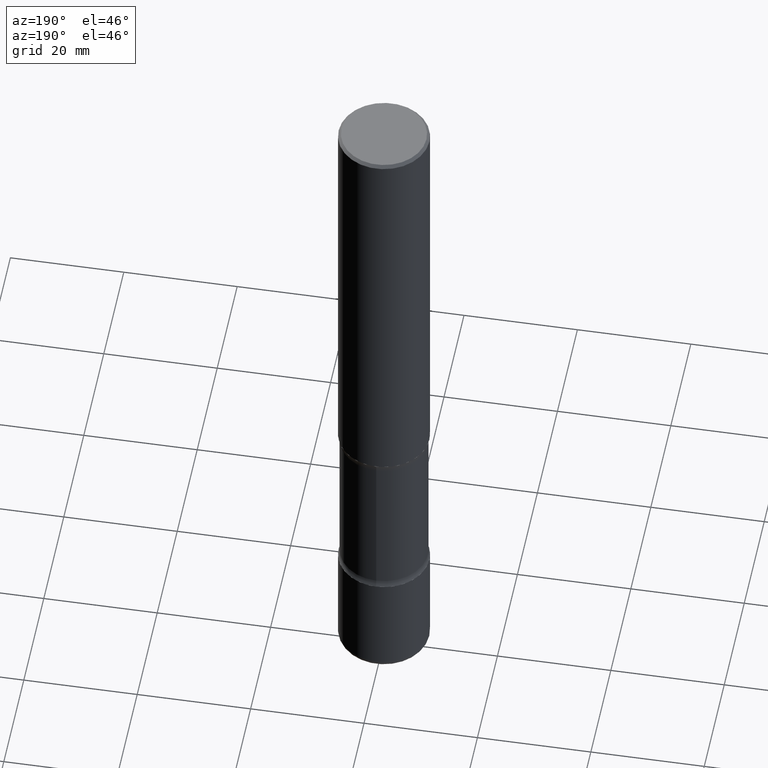
[diagram: clean part render]
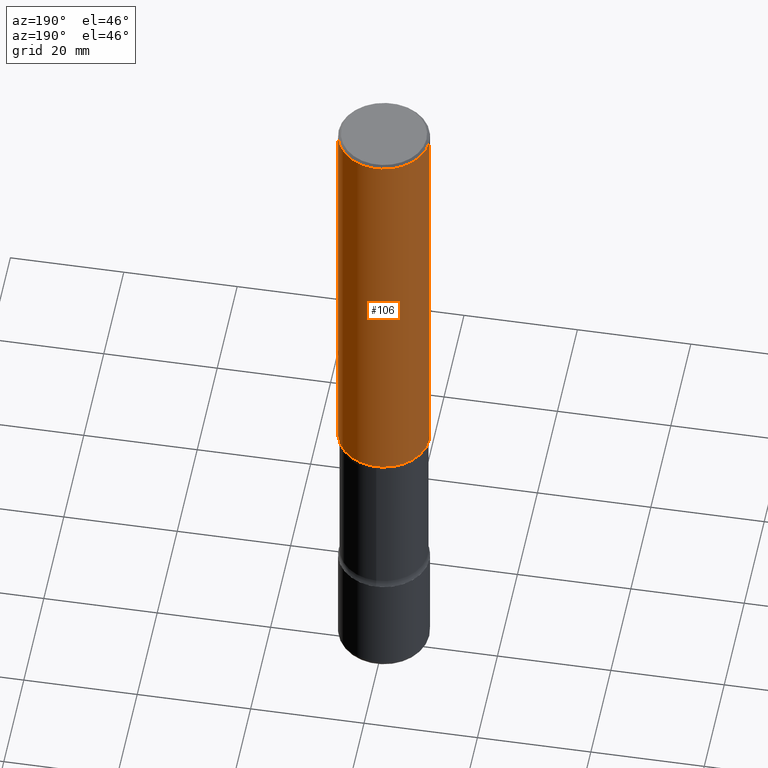
[diagram: same view with one face highlighted and labeled with its STEP entity id]
A machine part, auxiliary view. The second image highlights one B-rep face of the part: STEP entity #106.
In plain terms, the highlighted cylindrical surface (partial cylindrical patch) has radius 7.9997 mm, axis along (-0, 0, 1).
Its self-contained STEP definition (entity closure, byte-faithful):
#8 = DIRECTION ( 'NONE',  ( 1.000000000000000000, -6.982962677686266711E-15, 4.876176775795936353E-29 ) ) ;
#28 = CARTESIAN_POINT ( 'NONE',  ( 7.220980290903470182E-29, -1.030964609733603853E-14, -2.952799999999999869 ) ) ;
#47 = CIRCLE ( 'NONE', #511, 0.3149500000000002298 ) ;
#70 = DIRECTION ( 'NONE',  ( -2.445468806185136877E-29, 3.491481338843145188E-15, 1.000000000000000000 ) ) ;
#73 = CARTESIAN_POINT ( 'NONE',  ( -0.3149500000000000077, 2.237854346276435590E-15, -1.549218606675782676E-29 ) ) ;
#77 = CARTESIAN_POINT ( 'NONE',  ( -0.3149499999999998967, 2.129454468560425784E-15, -0.02000000000000006981 ) ) ;
#104 = CIRCLE ( 'NONE', #176, 0.3149499999999998967 ) ;
#106 = ADVANCED_FACE ( 'NONE', ( #344 ), #433, .T. ) ;
#109 = VERTEX_POINT ( 'NONE', #352 ) ;
#114 = EDGE_LOOP ( 'NONE', ( #463, #423, #426, #240 ) ) ;
#121 = VECTOR ( 'NONE', #207, 39.37007874015748143 ) ;
#163 = CARTESIAN_POINT ( 'NONE',  ( 0.3149500000000000077, -2.199284095337289871E-15, 1.535751875536930130E-29 ) ) ;
#176 = AXIS2_PLACEMENT_3D ( 'NONE', #194, #233, #368 ) ;
#194 = CARTESIAN_POINT ( 'NONE',  ( 4.890937612370289799E-31, -6.982962677686315028E-17, -0.02000000000000006981 ) ) ;
#201 = VECTOR ( 'NONE', #70, 39.37007874015748143 ) ;
#203 = LINE ( 'NONE', #163, #121 ) ;
#207 = DIRECTION ( 'NONE',  ( -2.445468806185136877E-29, 3.491481338843145188E-15, 1.000000000000000000 ) ) ;
#233 = DIRECTION ( 'NONE',  ( -2.445468806185136597E-29, 3.491481338843145583E-15, 1.000000000000000000 ) ) ;
#240 = ORIENTED_EDGE ( 'NONE', *, *, #255, .F. ) ;
#255 = EDGE_CURVE ( 'NONE', #549, #109, #203, .T. ) ;
#328 = CARTESIAN_POINT ( 'NONE',  ( -0.3149500000000002298, -2.951883515780010590E-15, -2.952799999999999869 ) ) ;
#344 = FACE_OUTER_BOUND ( 'NONE', #114, .T. ) ;
#352 = CARTESIAN_POINT ( 'NONE',  ( 0.3149499999999998967, -2.230543471175006266E-15, -0.02000000000000006981 ) ) ;
#363 = EDGE_CURVE ( 'NONE', #373, #379, #505, .T. ) ;
#368 = DIRECTION ( 'NONE',  ( 1.000000000000000000, -6.982962677686265922E-15, 0.000000000000000000 ) ) ;
#373 = VERTEX_POINT ( 'NONE', #328 ) ;
#379 = VERTEX_POINT ( 'NONE', #77 ) ;
#386 = EDGE_CURVE ( 'NONE', #549, #373, #47, .T. ) ;
#416 = DIRECTION ( 'NONE',  ( -2.445468806185136597E-29, 3.491481338843145583E-15, 1.000000000000000000 ) ) ;
#423 = ORIENTED_EDGE ( 'NONE', *, *, #363, .T. ) ;
#426 = ORIENTED_EDGE ( 'NONE', *, *, #516, .F. ) ;
#433 = CYLINDRICAL_SURFACE ( 'NONE', #475, 0.3149500000000000077 ) ;
#463 = ORIENTED_EDGE ( 'NONE', *, *, #386, .T. ) ;
#475 = AXIS2_PLACEMENT_3D ( 'NONE', #559, #486, #8 ) ;
#486 = DIRECTION ( 'NONE',  ( -2.445468806185136597E-29, 3.491481338843145583E-15, 1.000000000000000000 ) ) ;
#505 = LINE ( 'NONE', #73, #201 ) ;
#511 = AXIS2_PLACEMENT_3D ( 'NONE', #28, #416, #547 ) ;
#516 = EDGE_CURVE ( 'NONE', #109, #379, #104, .T. ) ;
#533 = CARTESIAN_POINT ( 'NONE',  ( 0.3149500000000002298, -1.250893019267332998E-14, -2.952799999999999869 ) ) ;
#547 = DIRECTION ( 'NONE',  ( 1.000000000000000000, -6.982962677686264344E-15, 0.000000000000000000 ) ) ;
#549 = VERTEX_POINT ( 'NONE', #533 ) ;
#559 = CARTESIAN_POINT ( 'NONE',  ( 0.000000000000000000, 0.000000000000000000, 0.000000000000000000 ) ) ;